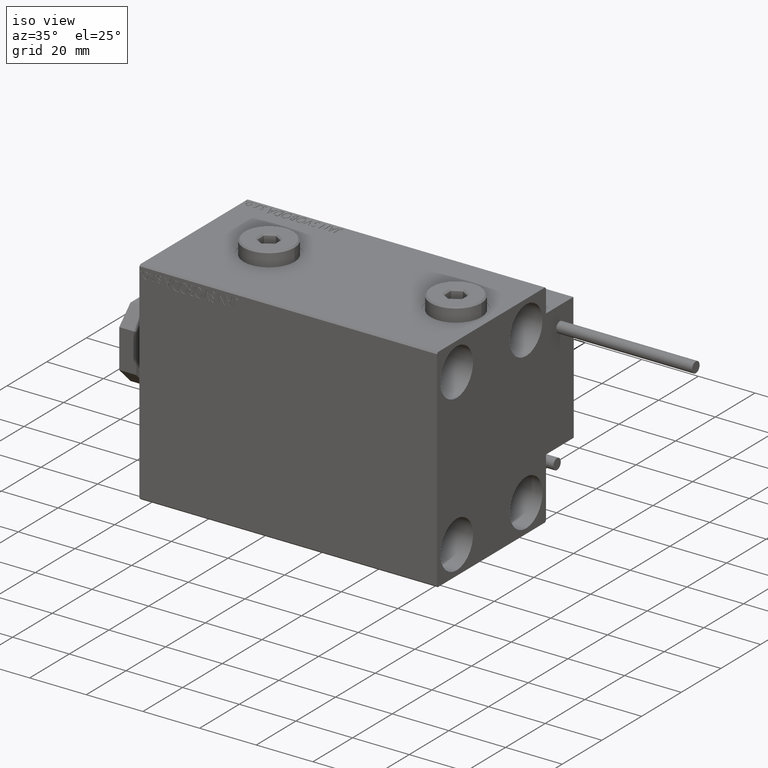
[diagram: clean part render]
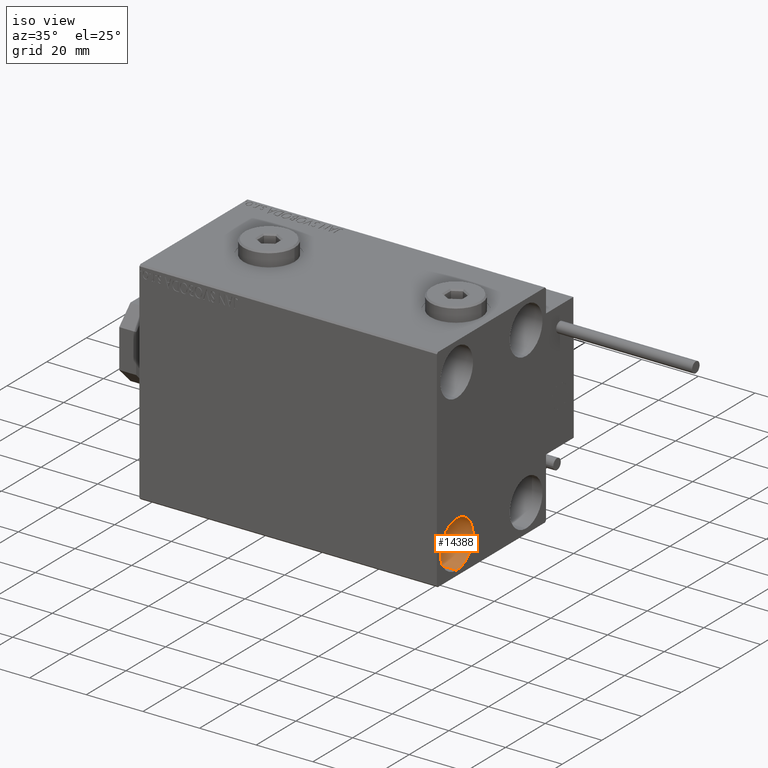
[diagram: same view with one face highlighted and labeled with its STEP entity id]
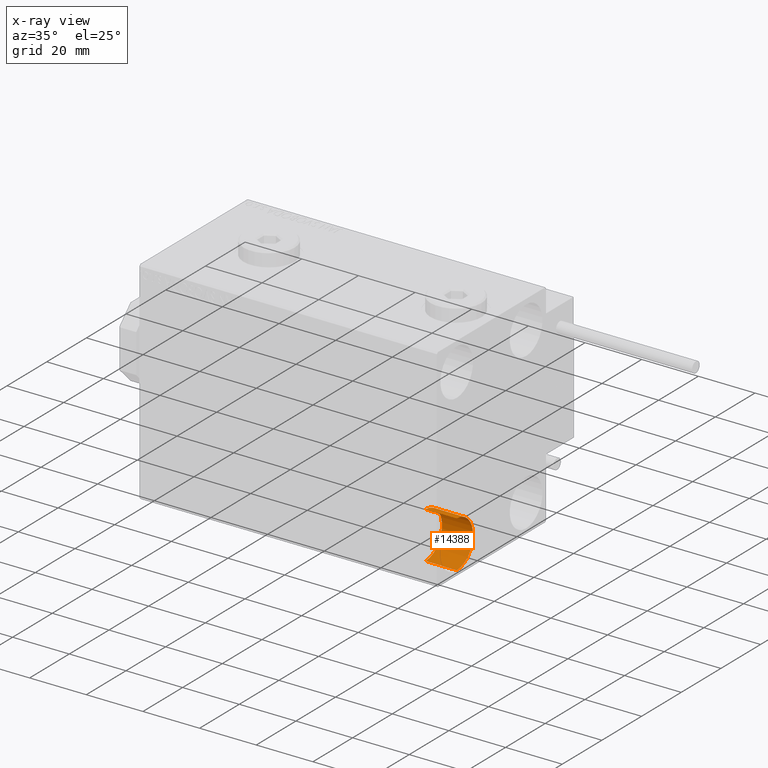
[diagram: x-ray of the same camera — body ghosted, the highlighted face saturated]
A machine part, iso view. The second image highlights one B-rep face of the part: STEP entity #14388.
The next image is the same camera in x-ray: the body ghosted, the highlighted face saturated — about 0% of this face is hidden behind the body in this view.
In plain terms, the highlighted cylindrical surface (edge-blend (fillet) strip) has radius 8.25 mm, axis along (1, 0, 0).
Its self-contained STEP definition (entity closure, byte-faithful):
#321 = CARTESIAN_POINT ( 'NONE',  ( 94.00000000000000000, -17.50000000000000355, -35.75000000000000711 ) ) ;
#363 = EDGE_CURVE ( 'NONE', #46932, #6568, #16928, .T. ) ;
#1222 = DIRECTION ( 'NONE',  ( 0.000000000000000000, 0.000000000000000000, 1.000000000000000000 ) ) ;
#1732 = FACE_OUTER_BOUND ( 'NONE', #32709, .T. ) ;
#2355 = CARTESIAN_POINT ( 'NONE',  ( 105.0000000000000000, -17.50000000000000355, -35.75000000000000711 ) ) ;
#4794 = VERTEX_POINT ( 'NONE', #24746 ) ;
#5386 = CYLINDRICAL_SURFACE ( 'NONE', #34691, 8.250000000000000000 ) ;
#5931 = ORIENTED_EDGE ( 'NONE', *, *, #21797, .T. ) ;
#6568 = VERTEX_POINT ( 'NONE', #2355 ) ;
#8386 = CARTESIAN_POINT ( 'NONE',  ( 105.0000000000000000, -17.50000000000000355, -27.50000000000000355 ) ) ;
#10782 = VECTOR ( 'NONE', #32409, 1000.000000000000000 ) ;
#12263 = ORIENTED_EDGE ( 'NONE', *, *, #363, .F. ) ;
#12550 = DIRECTION ( 'NONE',  ( 0.000000000000000000, 0.000000000000000000, 1.000000000000000000 ) ) ;
#14388 = ADVANCED_FACE ( 'NONE', ( #1732 ), #5386, .F. ) ;
#15330 = CIRCLE ( 'NONE', #48645, 8.250000000000000000 ) ;
#16190 = DIRECTION ( 'NONE',  ( -1.000000000000000000, -0.000000000000000000, -0.000000000000000000 ) ) ;
#16584 = VERTEX_POINT ( 'NONE', #39711 ) ;
#16928 = CIRCLE ( 'NONE', #17922, 8.250000000000000000 ) ;
#17111 = DIRECTION ( 'NONE',  ( -1.000000000000000000, -0.000000000000000000, -0.000000000000000000 ) ) ;
#17922 = AXIS2_PLACEMENT_3D ( 'NONE', #8386, #16190, #12550 ) ;
#19882 = LINE ( 'NONE', #28487, #19940 ) ;
#19940 = VECTOR ( 'NONE', #44379, 1000.000000000000000 ) ;
#20790 = CARTESIAN_POINT ( 'NONE',  ( 94.00000000000000000, -17.50000000000000355, -27.50000000000000355 ) ) ;
#21285 = DIRECTION ( 'NONE',  ( 0.000000000000000000, 0.000000000000000000, -1.000000000000000000 ) ) ;
#21797 = EDGE_CURVE ( 'NONE', #16584, #6568, #47525, .T. ) ;
#21914 = EDGE_CURVE ( 'NONE', #4794, #46932, #19882, .T. ) ;
#24746 = CARTESIAN_POINT ( 'NONE',  ( 94.00000000000000000, -17.50000000000000355, -19.25000000000000355 ) ) ;
#28487 = CARTESIAN_POINT ( 'NONE',  ( 94.00000000000000000, -17.50000000000000355, -19.25000000000000355 ) ) ;
#29638 = DIRECTION ( 'NONE',  ( 1.000000000000000000, -0.000000000000000000, -0.000000000000000000 ) ) ;
#30167 = EDGE_CURVE ( 'NONE', #4794, #16584, #15330, .T. ) ;
#32409 = DIRECTION ( 'NONE',  ( 1.000000000000000000, -0.000000000000000000, -0.000000000000000000 ) ) ;
#32709 = EDGE_LOOP ( 'NONE', ( #37679, #48065, #5931, #12263 ) ) ;
#34691 = AXIS2_PLACEMENT_3D ( 'NONE', #41365, #29638, #21285 ) ;
#37679 = ORIENTED_EDGE ( 'NONE', *, *, #21914, .F. ) ;
#39711 = CARTESIAN_POINT ( 'NONE',  ( 94.00000000000000000, -17.50000000000000355, -35.75000000000000711 ) ) ;
#41365 = CARTESIAN_POINT ( 'NONE',  ( 94.00000000000000000, -17.50000000000000355, -27.50000000000000355 ) ) ;
#44379 = DIRECTION ( 'NONE',  ( 1.000000000000000000, -0.000000000000000000, -0.000000000000000000 ) ) ;
#46932 = VERTEX_POINT ( 'NONE', #50733 ) ;
#47525 = LINE ( 'NONE', #321, #10782 ) ;
#48065 = ORIENTED_EDGE ( 'NONE', *, *, #30167, .T. ) ;
#48645 = AXIS2_PLACEMENT_3D ( 'NONE', #20790, #17111, #1222 ) ;
#50733 = CARTESIAN_POINT ( 'NONE',  ( 105.0000000000000000, -17.50000000000000355, -19.25000000000000355 ) ) ;